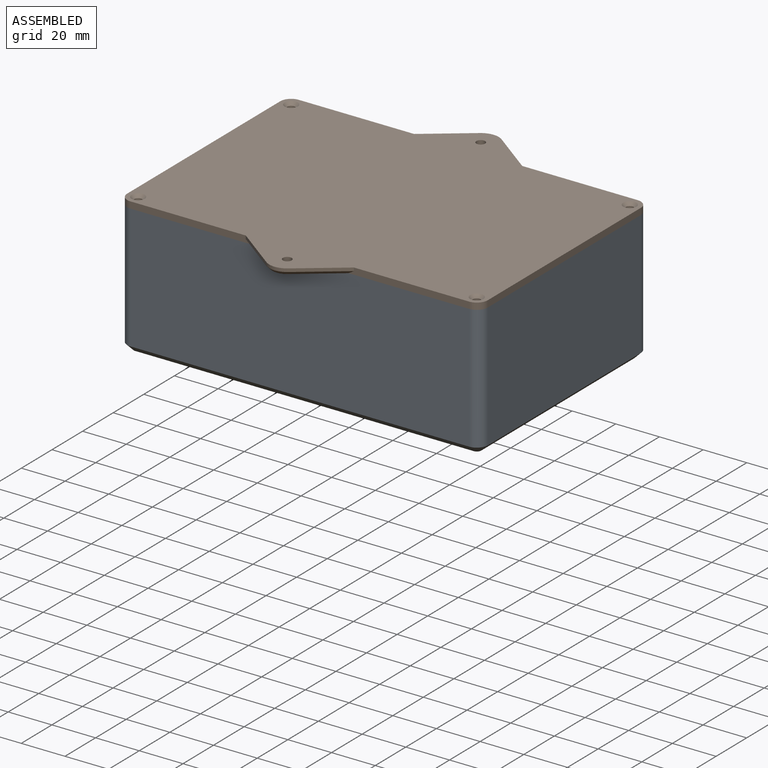
[diagram: assembled view]
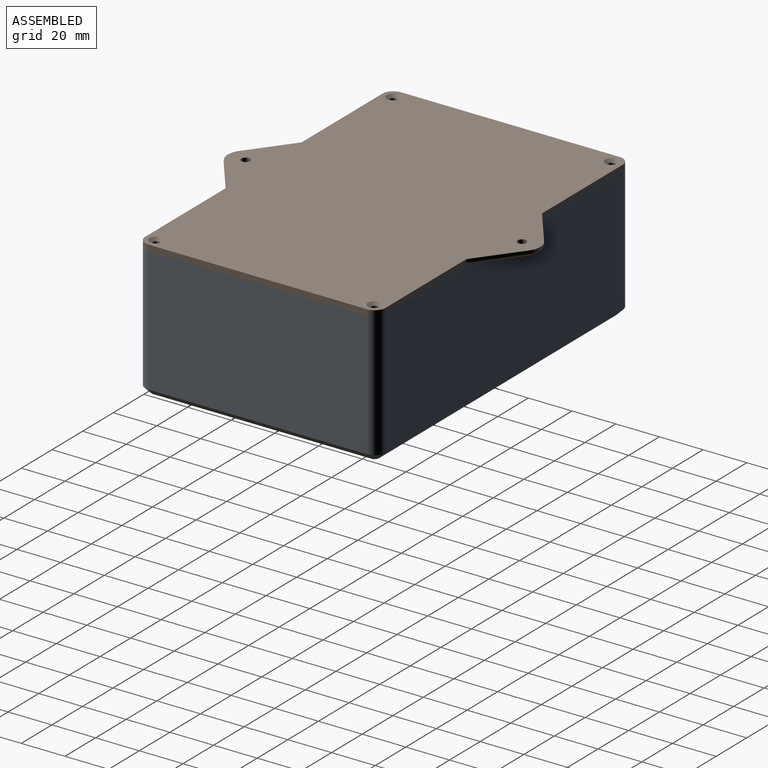
[diagram: assembled view, second angle]
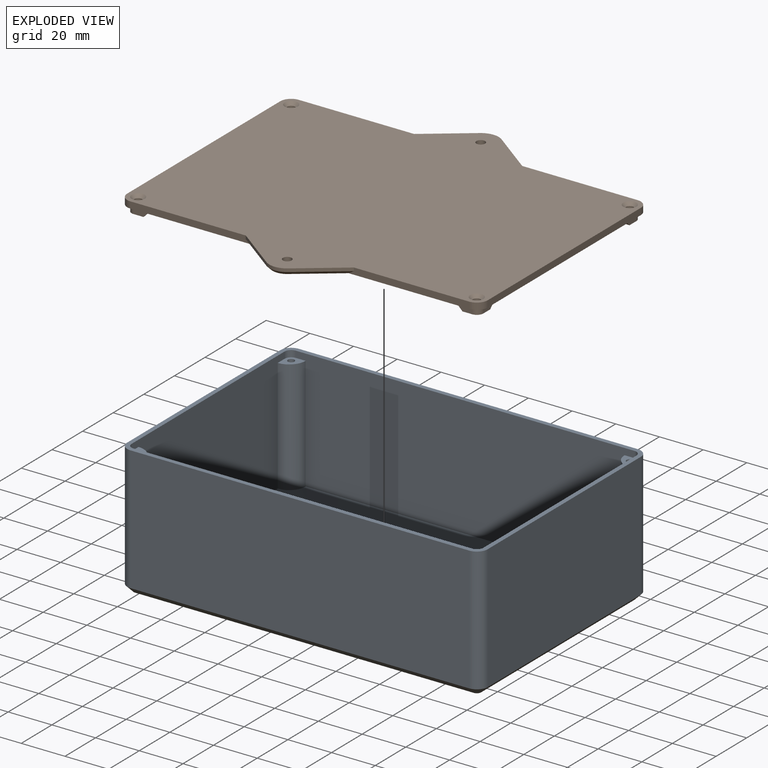
[diagram: exploded view]
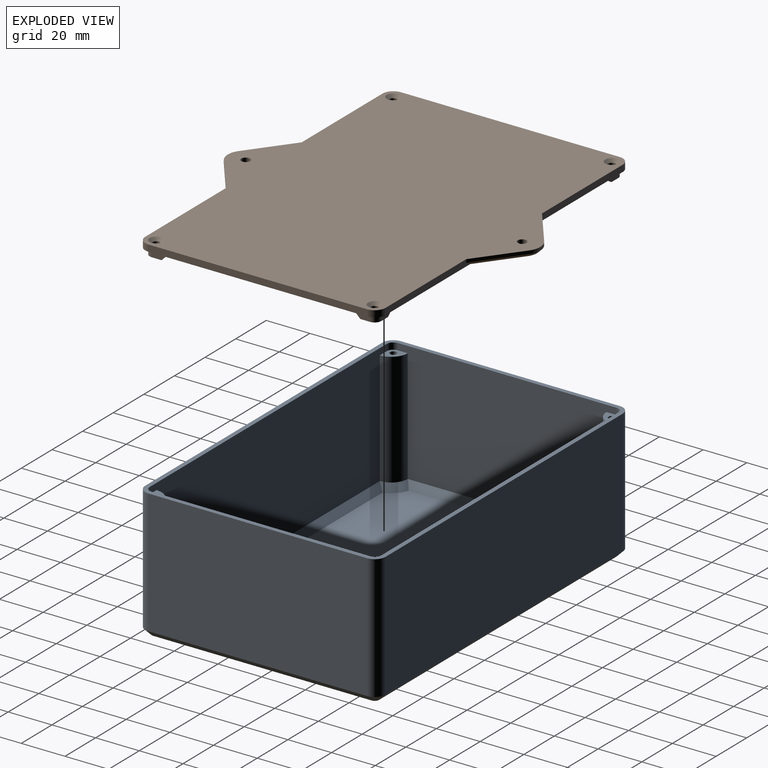
[diagram: exploded view, second angle]
FCSTD DOCUMENT  (FreeCAD 1.1R40971 (Git))
Label: enclosure
License: All rights reserved
LicenseURL: https://en.wikipedia.org/wiki/All_rights_reserved
objects: Sketcher::SketchObject×6, App::Point×5, PartDesign::Pad×5, PartDesign::Mirrored×5, PartDesign::Chamfer×4, PartDesign::MultiTransform×3, PartDesign::Body×2, App::Part×2, Spreadsheet::Sheet×1, PartDesign::Thickness×1, PartDesign::Hole×1, Assembly::JointGroup×1, Assembly::AssemblyObject×1
note: 63 computed .brp shape members not serialized (recipe doc carries the construction recipe); baked Part::Feature solids carry a one-line shape summary decoded from their .brp

FEATURE [App::Point] Origin001
  Role = Origin
FEATURE [App::Point] Origin003
  Role = Origin
FEATURE [Sketcher::SketchObject] Sketch
  ArcFitTolerance = 1e-06
  AttachmentSupport = -> [XY_Plane001]
  ExternalTypes = [0]
  FullyConstrained = true
  MakeInternals = false
  MapMode = 5
  expr: Constraints[31] = <<box>>.out_radius
  expr: Constraints[5] = <<box>>.out_length
  expr: Constraints[6] = <<box>>.out_width
  sketch-geometry (16):
    g0: LineSegment StartX=-82.5 StartY=50 StartZ=0 EndX=-82.5 EndY=-50 EndZ=0
    g1: LineSegment StartX=-77.5 StartY=-55 StartZ=0 EndX=77.5 EndY=-55 EndZ=0
    g2: LineSegment StartX=82.5 StartY=-50 StartZ=0 EndX=82.5 EndY=50 EndZ=0
    g3: LineSegment StartX=77.5 StartY=55 StartZ=0 EndX=-77.5 EndY=55 EndZ=0
    g4: GeomPoint [constr] X=-82.5 Y=55 Z=0
    g5: GeomPoint [constr] X=82.5 Y=55 Z=0
    g6: GeomPoint [constr] X=82.5 Y=-55 Z=0
    g7: GeomPoint [constr] X=-82.5 Y=-55 Z=0
    g8: ArcOfCircle CenterX=-77.5 CenterY=50 CenterZ=0 NormalX=0 NormalY=0 NormalZ=1 AngleXU=0 Radius=5 StartAngle=1.5708 EndAngle=3.14159
    g9: GeomPoint [constr] X=-82.5 Y=55 Z=0
    g10: ArcOfCircle CenterX=77.5 CenterY=50 CenterZ=0 NormalX=0 NormalY=0 NormalZ=1 AngleXU=0 Radius=5 StartAngle=1.459e-13 EndAngle=1.5708
    g11: GeomPoint [constr] X=82.5 Y=55 Z=0
    g12: ArcOfCircle CenterX=77.5 CenterY=-50 CenterZ=0 NormalX=0 NormalY=0 NormalZ=1 AngleXU=0 Radius=5 StartAngle=4.71239 EndAngle=6.28319
    g13: GeomPoint [constr] X=82.5 Y=-55 Z=0
    g14: ArcOfCircle CenterX=-77.5 CenterY=-50 CenterZ=0 NormalX=0 NormalY=0 NormalZ=1 AngleXU=0 Radius=5 StartAngle=3.14159 EndAngle=4.71239
    g15: GeomPoint [constr] X=-82.5 Y=-55 Z=0
  constraints (35):
    c: Vertical(g0)
    c: Vertical(g2)
    c: Horizontal(g1)
    c: Horizontal(g3)
    c: Symmetric(g5,g7,g-1)
    c: DistanceX(g4,g5) = 165
    c: DistanceY(g6,g5) = 110
    c: PointOnObject(g4,g0)
    c: PointOnObject(g4,g3)
    c: PointOnObject(g5,g3)
    c: PointOnObject(g5,g2)
    c: PointOnObject(g6,g2)
    c: PointOnObject(g6,g1)
    c: PointOnObject(g7,g0)
    c: PointOnObject(g7,g1)
    c: PointOnObject(g9,g0)
    c: PointOnObject(g9,g3)
    c: Tangent(g0,g8) = -1.5708
    c: Tangent(g3,g8) = -1.5708
    c: PointOnObject(g11,g2)
    c: PointOnObject(g11,g3)
    c: Tangent(g2,g10) = -1.5708
    c: Tangent(g3,g10) = -1.5708
    c: PointOnObject(g13,g2)
    c: PointOnObject(g13,g1)
    c: Tangent(g2,g12) = -1.5708
    c: Tangent(g1,g12) = -1.5708
    c: PointOnObject(g15,g1)
    c: PointOnObject(g15,g0)
    c: Tangent(g1,g14) = -1.5708
    c: Tangent(g0,g14) = -1.5708
    c: Radius(g8) = 5
    c: Equal(g10,g12)
    c: Equal(g12,g14)
    c: Equal(g8,g10)
FEATURE [Spreadsheet::Sheet] Spreadsheet  label="box"
  cells = A1='ENCLOSURE; A2='out_width; B2(out_width)=110; A3='out_length; B3(out_length)=165; A4='out_height; B4(out_height)=60; A5='out_radius; B5(out_radius)=5; A6='wall_thickness; B6(wall_thickness)=2; A7='box_chamfer; B7(box_chamfer)=3; A9='lug_height; B9(lug_height)==B4 - B19; C9='computed; A10='lug_center_to_corner; A11='lug_radius; B11(lug_radius)==B12 * 2.5; C11='computed; A12='lug_hole_diam; B12(lug_hole_diam)=3; A13='lug_hole_center_width; B13(lug_hole_center_width)==B2 / 2 - B6 - B12; C13='computed; A14='lug_hole_center_length; B14(lug_hole_center_length)==B3 / 2 - B6 - B12; C14='computed; A16='lid_thickness; B16(lid_thickness)=3; A17='lid_lip_height; B17(lid_lip_height)=2; A18='lid_screw_head_diam; B18(lid_screw_head_diam)=6.1; A19='lid_lug_height; B19(lid_lug_height)=3; A20='in_radius; B20(in_radius)==B5 - B6; A22='tab_width; B22(tab_width)==0.15 * B2; C22='computed; A23='tab_length; B23(tab_length)==0.3 * B3; C23='computed; A24='tab_chamfer; B24(tab_chamfer)=1.5; A25='tab_hole_diam; B25(tab_hole_diam)=4; A26='tab_radius; B26(tab_radius)==B22 / 2
FEATURE [PartDesign::Pad] Pad  label="box block"
  Direction = (0,0,1)
  Length = 60
  Length2 = 10
  Profile = -> Sketch
  ReferenceAxis = -> Sketch [N_Axis]
  Refine = true
  Suppressed = false
  Type = 0
  expr: Length = <<box>>.out_height
FEATURE [PartDesign::Thickness] Thickness
  Base = -> Pad [Face10]
  BaseFeature = -> Pad
  Intersection = false
  Join = 0
  Mode = 0
  Refine = true
  Reversed = true
  SupportTransform = false
  Suppressed = false
  Value = 2
  expr: Value = <<box>>.wall_thickness
FEATURE [Sketcher::SketchObject] Sketch001
  ArcFitTolerance = 1e-06
  AttachmentSupport = -> [XY_Plane001]
  ExternalGeometry = -> [Thickness]
  ExternalTypes = [0]
  FullyConstrained = true
  MakeInternals = false
  MapMode = 5
  expr: Constraints[10] = <<box>>.lug_hole_center_length
  expr: Constraints[11] = <<box>>.lug_hole_center_width
  expr: Constraints[6] = <<box>>.lug_hole_diam
  expr: Constraints[7] = <<box>>.lug_hole_diam
  expr: Constraints[8] = <<box>>.lug_hole_diam
  expr: Constraints[9] = <<box>>.lug_radius
  sketch-geometry (4):
    g0: LineSegment StartX=-80.5 StartY=53 StartZ=0 EndX=-73 EndY=53 EndZ=0
    g1: LineSegment StartX=-80.5 StartY=53 StartZ=0 EndX=-80.5 EndY=45.5 EndZ=0
    g2: ArcOfCircle CenterX=-80.5 CenterY=53 CenterZ=0 NormalX=0 NormalY=0 NormalZ=1 AngleXU=0 Radius=7.5 StartAngle=4.71239 EndAngle=6.28319
    g3: Circle CenterX=-77.5 CenterY=50 CenterZ=0 NormalX=0 NormalY=0 NormalZ=1 AngleXU=0 Radius=1.5
  constraints (12):
    c: Coincident(g1,g0)
    c: Vertical(g1)
    c: Coincident(g2,g0)
    c: Coincident(g2,g0)
    c: Coincident(g2,g1)
    c: Horizontal(g0)
    c: Diameter(g3) = 3
    c: DistanceX(g0,g3) = 3
    c: DistanceY(g3,g0) = 3
    c: Radius(g2) = 7.5
    c: Distance(g3,g-2) = 77.5
    c: DistanceY(g-1,g3) = 50
FEATURE [PartDesign::Pad] Pad001  label="add lug"
  BaseFeature = -> Thickness
  Direction = (0,0,1)
  Length = 57
  Length2 = 10
  Profile = -> Sketch001
  ReferenceAxis = -> Sketch001 [N_Axis]
  Refine = true
  Suppressed = false
  Type = 0
  expr: Length = <<box>>.lug_height
FEATURE [PartDesign::Mirrored] Mirrored
  MirrorPlane = -> Sketch001 [V_Axis]
  Refine = true
  Suppressed = false
  TransformMode = 0
FEATURE [PartDesign::Mirrored] Mirrored001
  MirrorPlane = -> Sketch001 [H_Axis]
  Refine = true
  Suppressed = false
  TransformMode = 0
FEATURE [PartDesign::MultiTransform] MultiTransform  label="mirror lug"
  BaseFeature = -> Pad001
  Originals = -> [Pad001]
  Refine = true
  Suppressed = false
  TransformMode = 0
  Transformations = -> [Mirrored,Mirrored001]
FEATURE [App::Point] Origin005
  Role = Origin
FEATURE [Sketcher::SketchObject] Sketch002
  ArcFitTolerance = 1e-06
  AttachmentSupport = -> [XY_Plane003]
  ExternalTypes = [0]
  FullyConstrained = true
  MakeInternals = false
  MapMode = 5
  expr: Constraints[5] = <<box>>.out_length
  expr: Constraints[6] = <<box>>.out_width
  sketch-geometry (16):
    g0: LineSegment StartX=-82.5 StartY=50 StartZ=0 EndX=-82.5 EndY=-50 EndZ=0
    g1: LineSegment StartX=-77.5 StartY=-55 StartZ=0 EndX=77.5 EndY=-55 EndZ=0
    g2: LineSegment StartX=82.5 StartY=-50 StartZ=0 EndX=82.5 EndY=50 EndZ=0
    g3: LineSegment StartX=77.5 StartY=55 StartZ=0 EndX=-77.5 EndY=55 EndZ=0
    g4: GeomPoint [constr] X=-82.5 Y=55 Z=0
    g5: GeomPoint [constr] X=82.5 Y=55 Z=0
    g6: GeomPoint [constr] X=82.5 Y=-55 Z=0
    g7: GeomPoint [constr] X=-82.5 Y=-55 Z=0
    g8: ArcOfCircle CenterX=-77.5 CenterY=50 CenterZ=0 NormalX=0 NormalY=0 NormalZ=1 AngleXU=0 Radius=5 StartAngle=1.5708 EndAngle=3.14159
    g9: GeomPoint [constr] X=-82.5 Y=55 Z=0
    g10: ArcOfCircle CenterX=77.5 CenterY=50 CenterZ=0 NormalX=0 NormalY=0 NormalZ=1 AngleXU=0 Radius=5 StartAngle=1.459e-13 EndAngle=1.5708
    g11: GeomPoint [constr] X=82.5 Y=55 Z=0
    g12: ArcOfCircle CenterX=77.5 CenterY=-50 CenterZ=0 NormalX=0 NormalY=0 NormalZ=1 AngleXU=0 Radius=5 StartAngle=4.71239 EndAngle=6.28319
    g13: GeomPoint [constr] X=82.5 Y=-55 Z=0
    g14: ArcOfCircle CenterX=-77.5 CenterY=-50 CenterZ=0 NormalX=0 NormalY=0 NormalZ=1 AngleXU=0 Radius=5 StartAngle=3.14159 EndAngle=4.71239
    g15: GeomPoint [constr] X=-82.5 Y=-55 Z=0
  constraints (35):
    c: Vertical(g0)
    c: Vertical(g2)
    c: Horizontal(g1)
    c: Horizontal(g3)
    c: Symmetric(g5,g7,g-1)
    c: DistanceX(g4,g5) = 165
    c: DistanceY(g6,g5) = 110
    c: PointOnObject(g4,g0)
    c: PointOnObject(g4,g3)
    c: PointOnObject(g5,g3)
    c: PointOnObject(g5,g2)
    c: PointOnObject(g6,g2)
    c: PointOnObject(g6,g1)
    c: PointOnObject(g7,g0)
    c: PointOnObject(g7,g1)
    c: PointOnObject(g9,g0)
    c: PointOnObject(g9,g3)
    c: Tangent(g0,g8) = -1.5708
    c: Tangent(g3,g8) = -1.5708
    c: PointOnObject(g11,g2)
    c: PointOnObject(g11,g3)
    c: Tangent(g2,g10) = -1.5708
    c: Tangent(g3,g10) = -1.5708
    c: PointOnObject(g13,g2)
    c: PointOnObject(g13,g1)
    c: Tangent(g2,g12) = -1.5708
    c: Tangent(g1,g12) = -1.5708
    c: PointOnObject(g15,g1)
    c: PointOnObject(g15,g0)
    c: Tangent(g1,g14) = -1.5708
    c: Tangent(g0,g14) = -1.5708
    c: Radius(g8) = 5
    c: Equal(g10,g12)
    c: Equal(g12,g14)
    c: Equal(g8,g10)
FEATURE [App::Point] Origin007
  Role = Origin
FEATURE [PartDesign::Pad] Pad002  label="lid block"
  Direction = (0,0,1)
  Length = 3
  Length2 = 10
  Profile = -> Sketch002
  ReferenceAxis = -> Sketch002 [N_Axis]
  Refine = true
  Suppressed = false
  Type = 0
  expr: Length = <<box>>.lid_thickness
FEATURE [Sketcher::SketchObject] Sketch005
  ArcFitTolerance = 1e-06
  AttachmentSupport = -> [XY_Plane003]
  ExternalTypes = [0]
  FullyConstrained = true
  MakeInternals = false
  MapMode = 5
  expr: Constraints[10] = <<box>>.lug_hole_center_width
  expr: Constraints[15] = <<box>>.in_radius
  expr: Constraints[9] = <<box>>.lug_hole_center_length
  sketch-geometry (6):
    g0: LineSegment StartX=-80.5 StartY=45.5 StartZ=0 EndX=-80.5 EndY=50 EndZ=0
    g1: LineSegment StartX=-77.5 StartY=53 StartZ=0 EndX=-73 EndY=53 EndZ=0
    g2: ArcOfCircle CenterX=-80.5 CenterY=53 CenterZ=0 NormalX=0 NormalY=0 NormalZ=1 AngleXU=0 Radius=7.5 StartAngle=4.71239 EndAngle=6.28319
    g3: Circle [constr] CenterX=-77.5 CenterY=50 CenterZ=0 NormalX=0 NormalY=0 NormalZ=1 AngleXU=0 Radius=1.5
    g4: ArcOfCircle CenterX=-77.5 CenterY=50 CenterZ=0 NormalX=0 NormalY=0 NormalZ=1 AngleXU=0 Radius=3 StartAngle=1.5708 EndAngle=3.14159
    g5: GeomPoint [constr] X=-80.5 Y=53 Z=0
  constraints (16):
    c: Vertical(g0)
    c: Horizontal(g1)
    c: Coincident(g2,g5)
    c: Coincident(g2,g1)
    c: Coincident(g2,g0)
    c: Radius(g2) = 7.5
    c: DistanceX(g5,g3) = 3
    c: DistanceY(g3,g5) = 3
    c: Diameter(g3) = 3
    c: DistanceX(g3,g-1) = 77.5
    c: DistanceY(g-1,g3) = 50
    c: PointOnObject(g5,g0)
    c: PointOnObject(g5,g1)
    c: Tangent(g0,g4) = 1.5708
    c: Tangent(g1,g4) = 1.5708
    c: Radius(g4) = 3
FEATURE [PartDesign::Pad] Pad004  label="add lid lug"
  BaseFeature = -> Pad002
  Direction = (0,0,1)
  Length = 3
  Length2 = 10
  Profile = -> Sketch005
  ReferenceAxis = -> Sketch005 [N_Axis]
  Refine = true
  Reversed = true
  Suppressed = false
  Type = 0
  expr: Length = <<box>>.lid_lug_height
FEATURE [Sketcher::SketchObject] Sketch006
  ArcFitTolerance = 1e-06
  AttachmentOffset = pos=(0,0,3) rot=(0,0,1;0rad)
  AttachmentSupport = -> [XY_Plane003]
  ExternalTypes = [0]
  FullyConstrained = true
  MakeInternals = false
  MapMode = 5
  Placement = pos=(0,0,3) rot=(0,0,1;0rad)
  expr: .AttachmentOffset.Base.z = <<box>>.lid_thickness
  expr: Constraints[1] = <<box>>.lug_hole_center_width
  expr: Constraints[2] = <<box>>.lug_hole_center_length
  sketch-geometry (1):
    g0: Circle CenterX=-77.5 CenterY=50 CenterZ=0 NormalX=0 NormalY=0 NormalZ=1 AngleXU=0 Radius=1.5
  constraints (3):
    c: Diameter(g0) = 3
    c: DistanceY(g-1,g0) = 50
    c: DistanceX(g0,g-1) = 77.5
FEATURE [PartDesign::Hole] Hole  label="add lug screw hole"
  BaseFeature = -> Pad004
  CustomThreadClearance = 0
  Depth = 25
  DepthType = 0
  Diameter = 3.4
  DrillForDepth = false
  DrillPoint = 1
  DrillPointAngle = 118
  HoleCutCountersinkAngle = 90
  HoleCutCustomValues = false
  HoleCutDepth = 0
  HoleCutDiameter = 6.1
  HoleCutType = 2
  ModelThread = false
  Profile = -> Sketch006
  Refine = true
  Suppressed = false
  Tapered = false
  TaperedAngle = 90
  ThreadClass = 0
  ThreadDepth = 25
  ThreadDepthType = 0
  ThreadDiameter = 3
  ThreadDirection = 0
  ThreadFit = 0
  ThreadSize = 9
  ThreadType = 1
  Threaded = false
  UseCustomThreadClearance = false
FEATURE [PartDesign::Mirrored] Mirrored002
  MirrorPlane = -> Sketch005 [V_Axis]
  Refine = true
  Suppressed = false
  TransformMode = 0
FEATURE [PartDesign::Mirrored] Mirrored003
  MirrorPlane = -> Sketch005 [H_Axis]
  Refine = true
  Suppressed = false
  TransformMode = 0
FEATURE [PartDesign::MultiTransform] MultiTransform001  label="mirror lugs"
  BaseFeature = -> Hole
  Originals = -> [Pad004,Hole]
  Refine = true
  Suppressed = false
  TransformMode = 0
  Transformations = -> [Mirrored002,Mirrored003]
FEATURE [PartDesign::Chamfer] Chamfer  label="chamfer lid lugs"
  Angle = 45
  Base = -> MultiTransform001 [Edge22,Edge29,Edge27,Edge17]
  BaseFeature = -> MultiTransform001
  ChamferType = 0
  FlipDirection = false
  Refine = true
  Size = 2.99
  Size2 = 1
  SupportTransform = false
  Suppressed = false
  UseAllEdges = false
  expr: Size = <<box>>.lid_lug_height - 0.01
FEATURE [PartDesign::Chamfer] Chamfer001  label="chamfer box inner edges"
  Angle = 45
  Base = -> MultiTransform [Edge67,Edge68,Edge69,Edge70,Edge45,Edge35,Edge61,Edge53]
  BaseFeature = -> MultiTransform
  ChamferType = 0
  FlipDirection = false
  Refine = true
  Size = 3
  Size2 = 1
  SupportTransform = false
  Suppressed = false
  UseAllEdges = false
  expr: Size = <<box>>.box_chamfer
FEATURE [App::Point] Origin009
  Role = Origin
FEATURE [Assembly::JointGroup] Joints
FEATURE [Sketcher::SketchObject] Sketch007
  ArcFitTolerance = 1e-06
  AttachmentSupport = -> [XY_Plane003]
  ExternalTypes = [0]
  FullyConstrained = true
  MakeInternals = false
  MapMode = 5
  expr: Constraints[10] = <<box>>.tab_length
  expr: Constraints[12] = <<box>>.tab_hole_diam
  expr: Constraints[18] = <<box>>.tab_width
  expr: Constraints[3] = <<box>>.out_width / 2
  expr: Constraints[9] = <<box>>.tab_radius
  sketch-geometry (8):
    g0: LineSegment StartX=-4.95 StartY=69.85 StartZ=0 EndX=-24.75 EndY=55 EndZ=0
    g1: LineSegment StartX=-24.75 StartY=55 StartZ=0 EndX=24.75 EndY=55 EndZ=0
    g2: LineSegment StartX=24.75 StartY=55 StartZ=0 EndX=4.95 EndY=69.85 EndZ=0
    g3: ArcOfCircle CenterX=-2.4e-15 CenterY=63.25 CenterZ=0 NormalX=0 NormalY=0 NormalZ=1 AngleXU=0 Radius=8.25 StartAngle=0.927295 EndAngle=2.2143
    g4: GeomPoint [constr] X=0 Y=73.5625 Z=0
    g5: Circle CenterX=0 CenterY=63.25 CenterZ=0 NormalX=0 NormalY=0 NormalZ=1 AngleXU=0 Radius=2
    g6: LineSegment [constr] StartX=0 StartY=55 StartZ=0 EndX=0 EndY=71.5 EndZ=0
    g7: GeomPoint [constr] X=0 Y=63.25 Z=0
  constraints (19):
    c: Coincident(g0,g1)
    c: Coincident(g1,g2)
    c: Symmetric(g0,g1,g-2)
    c: Distance(g-1,g1) = 55
    c: PointOnObject(g4,g-2)
    c: PointOnObject(g4,g0)
    c: PointOnObject(g4,g2)
    c: Tangent(g0,g3) = -1.5708
    c: Tangent(g2,g3) = -1.5708
    c: Radius(g3) = 8.25
    c: Distance(g0,g1) = 49.5
    c: PointOnObject(g5,g-2)
    c: Diameter(g5) = 4
    c: PointOnObject(g6,g-2)
    c: PointOnObject(g6,g3)
    c: PointOnObject(g6,g1)
    c: Symmetric(g6,g6,g7)
    c: Coincident(g5,g7)
    c: DistanceY(g6,g6) = 16.5
FEATURE [PartDesign::Pad] Pad005  label="add tab"
  BaseFeature = -> Chamfer
  Direction = (0,0,1)
  Length = 3
  Length2 = 10
  Profile = -> Sketch007
  ReferenceAxis = -> Sketch007 [N_Axis]
  Refine = true
  Suppressed = false
  Type = 0
  expr: Length = <<box>>.lid_thickness
FEATURE [PartDesign::Mirrored] Mirrored004
  MirrorPlane = -> Sketch007 [H_Axis]
  Refine = true
  Suppressed = false
  TransformMode = 0
FEATURE [PartDesign::MultiTransform] MultiTransform002  label="mirror tab"
  BaseFeature = -> Pad005
  Originals = -> [Pad005]
  Refine = true
  Suppressed = false
  TransformMode = 0
  Transformations = -> [Mirrored004]
FEATURE [PartDesign::Chamfer] Chamfer002  label="chamfer tabs"
  Angle = 45
  Base = -> MultiTransform002 [Edge42,Edge18]
  BaseFeature = -> MultiTransform002
  ChamferType = 0
  FlipDirection = false
  Refine = true
  Size = 1.5
  Size2 = 1
  SupportTransform = false
  Suppressed = false
  UseAllEdges = false
  expr: Size = <<box>>.tab_chamfer
FEATURE [PartDesign::Body] Body001  label="body lid"
  AllowCompound = false
  Group = -> [Sketch002,Pad002,Sketch005,Pad004,Sketch006,Hole,MultiTransform001,Mirrored002,Mirrored003,Chamfer,Sketch007,Pad005,MultiTransform002,Mirrored004,Chamfer002]
  Origin = -> Origin006
  Placement = pos=(0,3e-15,0) rot=(0,0,1;0rad)
  Tip = -> Chamfer002
FEATURE [App::Part] Part001  label="Lid"
  Group = -> [Body001]
  Origin = -> Origin004
  Placement = pos=(-6.451e-13,1.985e-13,60) rot=(0,0,1;0rad)
  expr: .Placement.Base.z = 0
FEATURE [PartDesign::Chamfer] Chamfer003  label="chamfer box outer edges"
  Angle = 45
  Base = -> Chamfer001 [Edge68]
  BaseFeature = -> Chamfer001
  ChamferType = 0
  FlipDirection = false
  Refine = true
  Size = 3
  Size2 = 1
  SupportTransform = false
  Suppressed = false
  UseAllEdges = false
  expr: Size = <<box>>.box_chamfer
FEATURE [PartDesign::Body] Body  label="body box"
  AllowCompound = false
  Group = -> [Sketch,Pad,Thickness,Sketch001,Pad001,MultiTransform,Mirrored,Mirrored001,Chamfer001,Chamfer003]
  Origin = -> Origin002
  Tip = -> Chamfer003
FEATURE [App::Part] Part  label="Box"
  Group = -> [Body]
  Origin = -> Origin
FEATURE [Assembly::AssemblyObject] Assembly  label="Enclosure"
  Group = -> [Joints,Part,Part001,Spreadsheet]
  Origin = -> Origin008
  Type = Assembly
